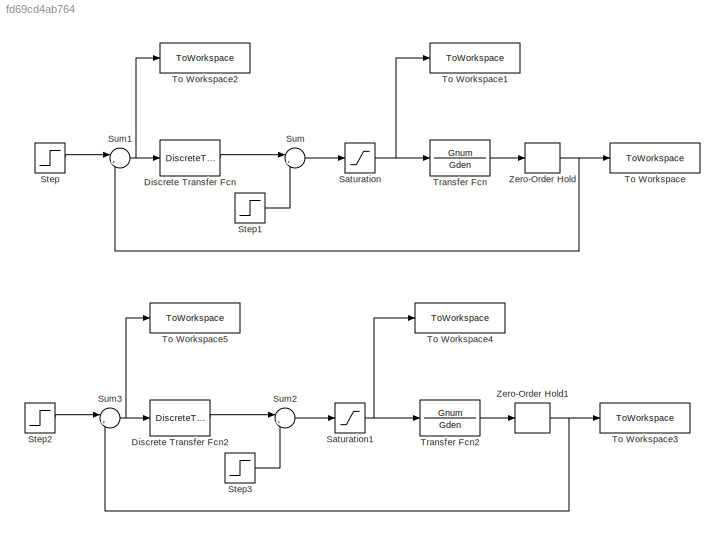
MODEL slx_fd69cd4ab764
KIND model
CONFIG AbsTol = auto
CONFIG EnableMultiTasking = off
CONFIG FixedStep = auto
CONFIG MaxStep = auto
CONFIG MinStep = auto
CONFIG RelTol = 1e-3
CONFIG SampleTimeConstraint = Unconstrained
CONFIG SolverName = VariableStepAuto
CONFIG StartTime = 0.0
CONFIG StopTime = 30
BLOCK [DiscreteTransferFcn] Discrete Transfer Fcn
  Denominator = [1 -p1 -p2]
  InputPortMap = u0
  Numerator = [q0 q1 q2]
  SampleTime = T0
BLOCK [DiscreteTransferFcn] Discrete Transfer Fcn2
  Denominator = [1 -P1 -P2 -P3]
  InputPortMap = u0
  Numerator = [Q0 Q1 Q2 Q3]
  SampleTime = T0
BLOCK [Saturate] Saturation
  LowerLimit = -20
  UpperLimit = 20
BLOCK [Saturate] Saturation1
  LowerLimit = -20
  UpperLimit = 20
BLOCK [Step] Step
  After = R
  SampleTime = 0
  Time = 0
BLOCK [Step] Step1
  After = d
  SampleTime = 0
  Time = td
BLOCK [Step] Step2
  After = R
  SampleTime = 0
  Time = 0
BLOCK [Step] Step3
  After = d
  SampleTime = 0
  Time = td
BLOCK [Sum] Sum
  Inputs = |++
BLOCK [Sum] Sum1
  Inputs = |+-
BLOCK [Sum] Sum2
  Inputs = |++
BLOCK [Sum] Sum3
  Inputs = |+-
BLOCK [ToWorkspace] To Workspace
  FixptAsFi = on
  MaxDataPoints = inf
  SampleTime = -1
  SaveFormat = Timeseries
  VariableName = saida2
BLOCK [ToWorkspace] To Workspace1
  FixptAsFi = on
  MaxDataPoints = inf
  SampleTime = -1
  SaveFormat = Timeseries
  VariableName = planta2
BLOCK [ToWorkspace] To Workspace2
  FixptAsFi = on
  MaxDataPoints = inf
  SampleTime = -1
  SaveFormat = Timeseries
  VariableName = erro2
BLOCK [ToWorkspace] To Workspace3
  FixptAsFi = on
  MaxDataPoints = inf
  SampleTime = -1
  SaveFormat = Timeseries
  VariableName = saida3
BLOCK [ToWorkspace] To Workspace4
  FixptAsFi = on
  MaxDataPoints = inf
  SampleTime = -1
  SaveFormat = Timeseries
  VariableName = planta3
BLOCK [ToWorkspace] To Workspace5
  FixptAsFi = on
  MaxDataPoints = inf
  SampleTime = -1
  SaveFormat = Timeseries
  VariableName = erro3
BLOCK [TransferFcn] Transfer Fcn
  Denominator = Gden
  Numerator = Gnum
BLOCK [TransferFcn] Transfer Fcn2
  Denominator = Gden
  Numerator = Gnum
BLOCK [ZeroOrderHold] Zero-Order Hold
  SampleTime = -1
BLOCK [ZeroOrderHold] Zero-Order Hold1
  SampleTime = -1
LINE Discrete Transfer Fcn2:1 -> Sum2:1
LINE Discrete Transfer Fcn:1 -> Sum:1
NET Saturation1:1 -> To Workspace4:1, Transfer Fcn2:1
NET Saturation:1 -> To Workspace1:1, Transfer Fcn:1
LINE Step1:1 -> Sum:2
LINE Step2:1 -> Sum3:1
LINE Step3:1 -> Sum2:2
LINE Step:1 -> Sum1:1
NET Sum1:1 -> Discrete Transfer Fcn:1, To Workspace2:1
LINE Sum2:1 -> Saturation1:1
NET Sum3:1 -> Discrete Transfer Fcn2:1, To Workspace5:1
LINE Sum:1 -> Saturation:1
LINE Transfer Fcn2:1 -> Zero-Order Hold1:1
LINE Transfer Fcn:1 -> Zero-Order Hold:1
NET Zero-Order Hold1:1 -> Sum3:2, To Workspace3:1
NET Zero-Order Hold:1 -> Sum1:2, To Workspace:1
note: NET lines group one-source signal fan-out (src -> all destinations, sorted); 1:1 wires keep LINE
